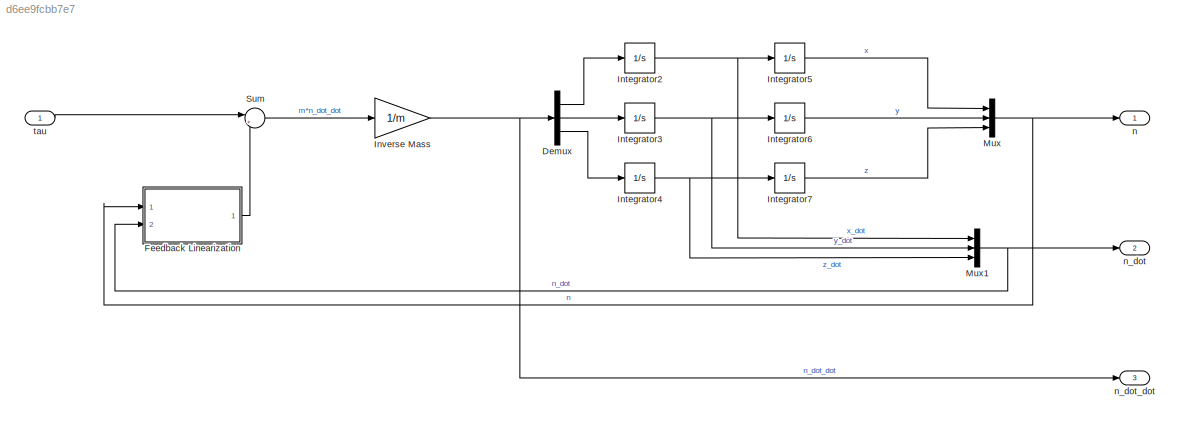
MODEL slx_d6ee9fcbb7e7
KIND model
CONFIG AbsTol = auto
CONFIG EnableMultiTasking = off
CONFIG FixedStep = auto
CONFIG MaxStep = auto
CONFIG MinStep = auto
CONFIG RelTol = 1e-3
CONFIG SampleTimeConstraint = Unconstrained
CONFIG Solver = VariableStepAuto
CONFIG SolverName = VariableStepAuto
CONFIG StartTime = 0.0
CONFIG StopTime = 10.0
BLOCK [Demux] Demux
  DisplayOption = bar
  Outputs = 3
  Ports = [1, 3]
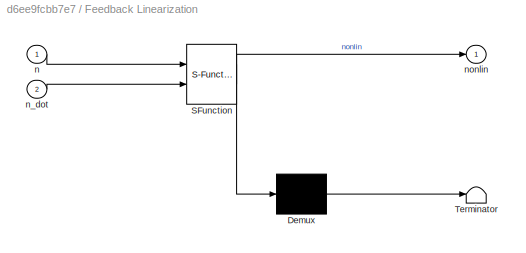
BLOCK [SubSystem] Feedback Linearization
  ErrorFcn = Stateflow.Translate.translate
  PermitHierarchicalResolution = ExplicitOnly
  Ports = [2, 1]
  RequestExecContextInheritance = off
  SFBlockType = MATLAB Function
  TreatAsAtomicUnit = on
BLOCK [Demux] Feedback Linearization/ Demux 
  Outputs = 1
  Ports = [1, 1]
BLOCK [S-Function] Feedback Linearization/ SFunction 
  EnableBusSupport = on
  FunctionName = sf_sfun
  PortCounts = [2 2]
  Ports = [2, 2]
  SFcnIsStateOwnerBlock = off
  SFunctionDeploymentMode = off
  Tag = Stateflow S-Function 2
BLOCK [Terminator] Feedback Linearization/ Terminator 
BLOCK [Inport] Feedback Linearization/n
  IconDisplay = Port number
BLOCK [Inport] Feedback Linearization/n_dot
  IconDisplay = Port number
  Port = 2
BLOCK [Outport] Feedback Linearization/nonlin
  IconDisplay = Port number
BLOCK [Integrator] Integrator2
  Ports = [1, 1]
BLOCK [Integrator] Integrator3
  Ports = [1, 1]
BLOCK [Integrator] Integrator4
  Ports = [1, 1]
BLOCK [Integrator] Integrator5
  Ports = [1, 1]
BLOCK [Integrator] Integrator6
  Ports = [1, 1]
BLOCK [Integrator] Integrator7
  Ports = [1, 1]
BLOCK [Gain] Inverse Mass
  Gain = 1/m
  OutDataTypeStr = Inherit: Inherit via internal rule
  ParamDataTypeStr = Inherit: Inherit via internal rule
  SaturateOnIntegerOverflow = off
BLOCK [Mux] Mux
  DisplayOption = bar
  Inputs = 3
  Ports = [3, 1]
BLOCK [Mux] Mux1
  DisplayOption = bar
  Inputs = 3
  Ports = [3, 1]
BLOCK [Sum] Sum
  IconShape = round
  InputSameDT = off
  Inputs = |+-
  OutDataTypeStr = Inherit: Inherit via internal rule
  Ports = [2, 1]
  SaturateOnIntegerOverflow = off
BLOCK [Outport] n
  IconDisplay = Port number
BLOCK [Outport] n_dot
  IconDisplay = Port number
  Port = 2
BLOCK [Outport] n_dot_dot 
  IconDisplay = Port number
  Port = 3
BLOCK [Inport] tau 
  IconDisplay = Port number
  PortDimensions = 3
LINE Demux:1 -> Integrator2:1
LINE Demux:2 -> Integrator3:1
LINE Demux:3 -> Integrator4:1
LINE Feedback Linearization:1 -> Sum:2
NET Integrator2:1 -> Integrator5:1, Mux1:1
NET Integrator3:1 -> Integrator6:1, Mux1:2
NET Integrator4:1 -> Integrator7:1, Mux1:3
LINE Integrator5:1 -> Mux:1
LINE Integrator6:1 -> Mux:2
LINE Integrator7:1 -> Mux:3
NET Inverse Mass:1 -> Demux:1, n_dot_dot :1
NET Mux1:1 -> Feedback Linearization:2, n_dot:1
NET Mux:1 -> Feedback Linearization:1, n:1
LINE Sum:1 -> Inverse Mass:1
LINE tau :1 -> Sum:1
note: NET lines group one-source signal fan-out (src -> all destinations, sorted); 1:1 wires keep LINE
CHART Feedback Linearization states=1 transitions=1
  STATE_LABEL 'eML_blk_kernel()'
  STATE_LABEL 'SCRIPT:\nfunction nonlin = fcn(n, n_dot)\n\nnonlin = 2*n_dot;\n'
